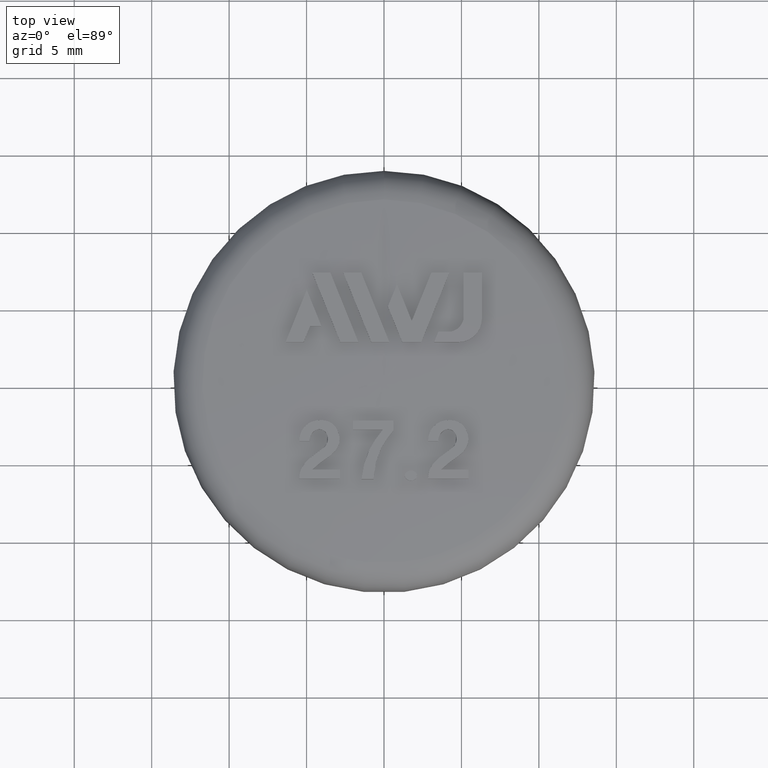
[diagram: clean part render]
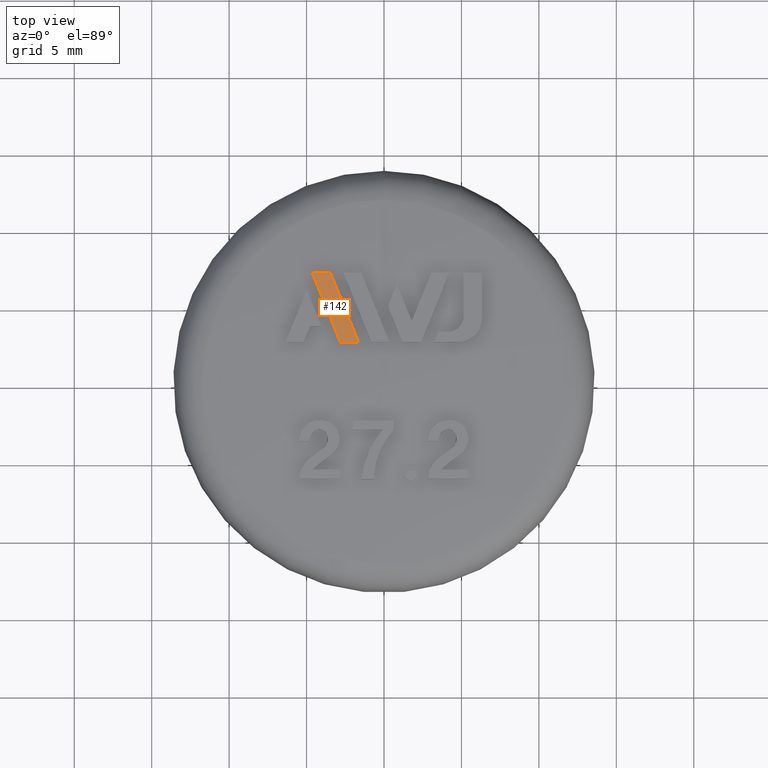
[diagram: same view with one face highlighted and labeled with its STEP entity id]
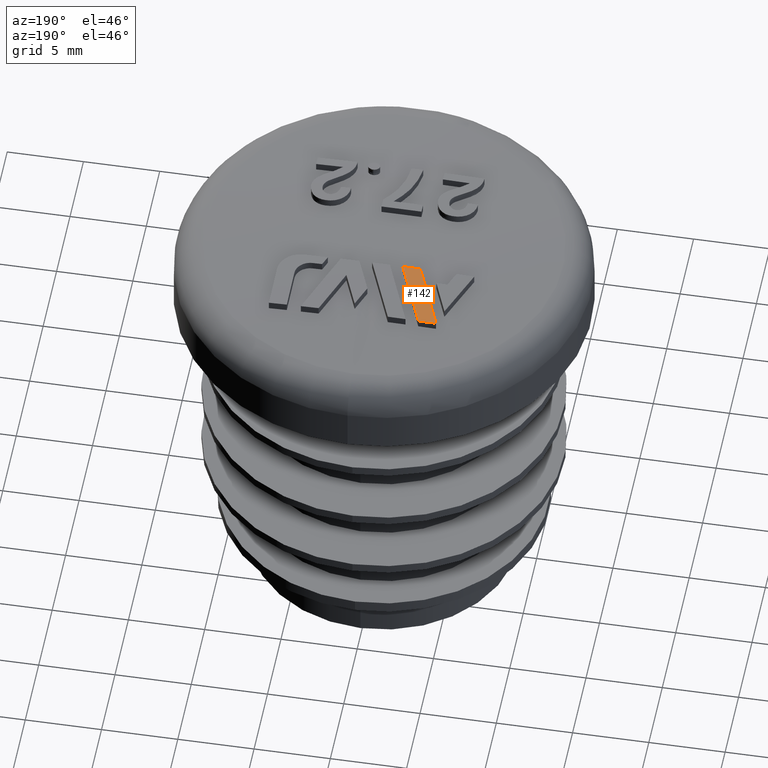
[diagram: same view with one face highlighted and labeled with its STEP entity id]
A machine part, top view. The second image highlights one B-rep face of the part: STEP entity #142.
A second angle (auxiliary view) of the same face is appended — the face is thin or edge-on in the first view.
In plain terms, the highlighted face is a freeform B-spline surface patch.
Its self-contained STEP definition (entity closure, byte-faithful):
#142 = ADVANCED_FACE( '', ( #326 ), #327, .T. );
#326 = FACE_OUTER_BOUND( '', #697, .T. );
#327 = ( B_SPLINE_SURFACE( 3, 3, ( ( #699, #700, #701, #702 ), ( #703, #704, #705, #706 ), ( #707, #708, #709, #710 ), ( #711, #712, #713, #714 ) ), .UNSPECIFIED., .F., .F., .F. )B_SPLINE_SURFACE_WITH_KNOTS( ( 4, 4 ), ( 4, 4 ), ( 3.60021423616616, 3.98929082055145 ), ( 1.52516182208695, 1.55541790700146 ), .UNSPECIFIED. )RATIONAL_B_SPLINE_SURFACE( ( ( 1.00000000000000, 0.987424685667613, 0.987424685667613, 1.00000000000000 ), ( 0.999923715565344, 0.987349360533701, 0.987349360533701, 0.999923715565344 ), ( 0.999923715565344, 0.987349360533701, 0.987349360533701, 0.999923715565344 ), ( 1.00000000000000, 0.987424685667613, 0.987424685667613, 1.00000000000000 ) ) )BOUNDED_SURFACE(  )REPRESENTATION_ITEM( '' )GEOMETRIC_REPRESENTATION_ITEM(  )SURFACE(  ) );
#697 = EDGE_LOOP( '', ( #1309, #1310, #1311, #1312 ) );
#699 = CARTESIAN_POINT( '', ( -1.31363581940293, 2.66061897044337, 27.4787585934281 ) );
#700 = CARTESIAN_POINT( '', ( -1.66089181731983, 2.48916716827490, 27.4787585934281 ) );
#701 = CARTESIAN_POINT( '', ( -1.96845357752142, 2.25382016443211, 27.4787585934281 ) );
#702 = CARTESIAN_POINT( '', ( -2.22471804257423, 1.96345664656653, 27.4787585934281 ) );
#703 = CARTESIAN_POINT( '', ( -2.11948863183940, 4.29278159001029, 27.4507636340726 ) );
#704 = CARTESIAN_POINT( '', ( -2.67976959331428, 4.01615229881936, 27.4507636340726 ) );
#705 = CARTESIAN_POINT( '', ( -3.17600579874302, 3.63643115250578, 27.4507636340726 ) );
#706 = CARTESIAN_POINT( '', ( -3.58947626932649, 3.16794348939019, 27.4507636340726 ) );
#707 = CARTESIAN_POINT( '', ( -2.92506174766748, 5.92437771611589, 27.3952359283315 ) );
#708 = CARTESIAN_POINT( '', ( -3.69829373567501, 5.54260744106386, 27.3952359283315 ) );
#709 = CARTESIAN_POINT( '', ( -4.38313890092016, 5.01856226187440, 27.3952359283315 ) );
#710 = CARTESIAN_POINT( '', ( -4.95376081373702, 4.37201227710555, 27.3952359283315 ) );
#711 = CARTESIAN_POINT( '', ( -3.73017080881803, 7.55503395259597, 27.3121881839036 ) );
#712 = CARTESIAN_POINT( '', ( -4.71623115178686, 7.06818326070575, 27.3121881839036 ) );
#713 = CARTESIAN_POINT( '', ( -5.58957662765406, 6.39989718726709, 27.3121881839036 ) );
#714 = CARTESIAN_POINT( '', ( -6.31725945478026, 5.57538745459232, 27.3121881839036 ) );
#1309 = ORIENTED_EDGE( '', *, *, #1552, .T. );
#1310 = ORIENTED_EDGE( '', *, *, #1547, .T. );
#1311 = ORIENTED_EDGE( '', *, *, #1549, .T. );
#1312 = ORIENTED_EDGE( '', *, *, #1551, .T. );
#1547 = EDGE_CURVE( '', #1816, #1818, #1820, .T. );
#1549 = EDGE_CURVE( '', #1818, #1821, #1823, .T. );
#1551 = EDGE_CURVE( '', #1821, #1824, #1826, .T. );
#1552 = EDGE_CURVE( '', #1824, #1816, #1827, .T. );
#1816 = VERTEX_POINT( '', #2788 );
#1818 = VERTEX_POINT( '', #2791 );
#1820 = B_SPLINE_CURVE_WITH_KNOTS( '', 3, ( #2794, #2795, #2796, #2797, #2798, #2799 ), .UNSPECIFIED., .F., .F., ( 4, 2, 4 ), ( 1.14429537296094, 1.14487632501702, 1.14545727707310 ), .UNSPECIFIED. );
#1821 = VERTEX_POINT( '', #2800 );
#1823 = B_SPLINE_CURVE_WITH_KNOTS( '', 3, ( #2803, #2804, #2805, #2806 ), .UNSPECIFIED., .F., .F., ( 4, 4 ), ( 2.15727823086239E-007, 0.00485220227538565 ), .UNSPECIFIED. );
#1824 = VERTEX_POINT( '', #2807 );
#1826 = B_SPLINE_CURVE_WITH_KNOTS( '', 3, ( #2810, #2811, #2812, #2813, #2814, #2815 ), .UNSPECIFIED., .F., .F., ( 4, 2, 4 ), ( 1.14327749453686, 1.14385831269472, 1.14443913085258 ), .UNSPECIFIED. );
#1827 = B_SPLINE_CURVE_WITH_KNOTS( '', 3, ( #2816, #2817, #2818, #2819 ), .UNSPECIFIED., .F., .F., ( 4, 4 ), ( 2.15900638225966E-007, 0.00485239896971066 ), .UNSPECIFIED. );
#2788 = CARTESIAN_POINT( '', ( -2.81951850000000, 2.50000000000001, 27.4646613867407 ) );
#2791 = CARTESIAN_POINT( '', ( -1.65762150000000, 2.50000000000000, 27.4782577745901 ) );
#2794 = CARTESIAN_POINT( '', ( -2.81951849999994, 2.50000000000000, 27.4646613867407 ) );
#2795 = CARTESIAN_POINT( '', ( -2.62588248859737, 2.50000000000000, 27.4675329090718 ) );
#2796 = CARTESIAN_POINT( '', ( -2.43220372643880, 2.50000000000000, 27.4701001544691 ) );
#2797 = CARTESIAN_POINT( '', ( -2.04491392957212, 2.50000000000000, 27.4746298480652 ) );
#2798 = CARTESIAN_POINT( '', ( -1.85126814970077, 2.50000000000000, 27.4765927804278 ) );
#2799 = CARTESIAN_POINT( '', ( -1.65762150000000, 2.50000000000000, 27.4782577745901 ) );
#2800 = CARTESIAN_POINT( '', ( -3.47460400000000, 6.99670800000001, 27.3391693552357 ) );
#2803 = CARTESIAN_POINT( '', ( -1.65762150000000, 2.50000000000000, 27.4782577745901 ) );
#2804 = CARTESIAN_POINT( '', ( -2.26348978511247, 3.99941607286342, 27.4536047281095 ) );
#2805 = CARTESIAN_POINT( '', ( -2.86920235536168, 5.49844677918016, 27.4072511672648 ) );
#2806 = CARTESIAN_POINT( '', ( -3.47460400000000, 6.99670800000001, 27.3391693552357 ) );
#2807 = CARTESIAN_POINT( '', ( -4.63624549999999, 6.99670800000001, 27.3136623602531 ) );
#2810 = CARTESIAN_POINT( '', ( -3.47460400000003, 6.99670800000001, 27.3391693552357 ) );
#2811 = CARTESIAN_POINT( '', ( -3.66822758769198, 6.99670800000001, 27.3355302701105 ) );
#2812 = CARTESIAN_POINT( '', ( -3.86184781273713, 6.99670800000001, 27.3315854414213 ) );
#2813 = CARTESIAN_POINT( '', ( -4.24908152360011, 6.99670800000001, 27.3230830299748 ) );
#2814 = CARTESIAN_POINT( '', ( -4.44266545875546, 6.99670800000000, 27.3185261253863 ) );
#2815 = CARTESIAN_POINT( '', ( -4.63624549999999, 6.99670800000001, 27.3136623602531 ) );
#2816 = CARTESIAN_POINT( '', ( -4.63624549999999, 6.99670800000001, 27.3136623602531 ) );
#2817 = CARTESIAN_POINT( '', ( -4.03092276637358, 5.49843138558311, 27.3856821594385 ) );
#2818 = CARTESIAN_POINT( '', ( -3.42534645698331, 3.99952712806631, 27.4359600603541 ) );
#2819 = CARTESIAN_POINT( '', ( -2.81951850000000, 2.50000000000000, 27.4646613867407 ) );